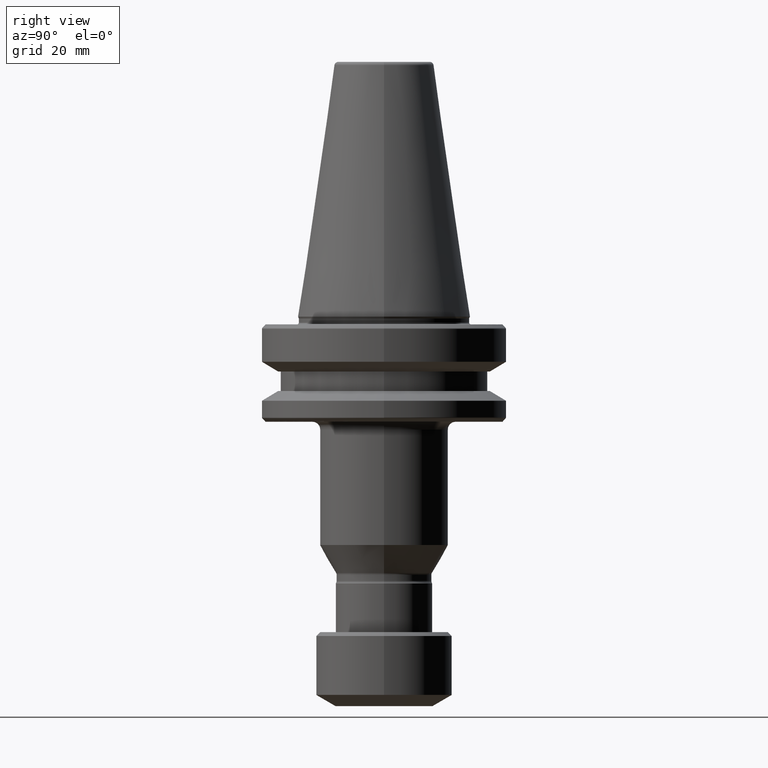
[diagram: clean part render]
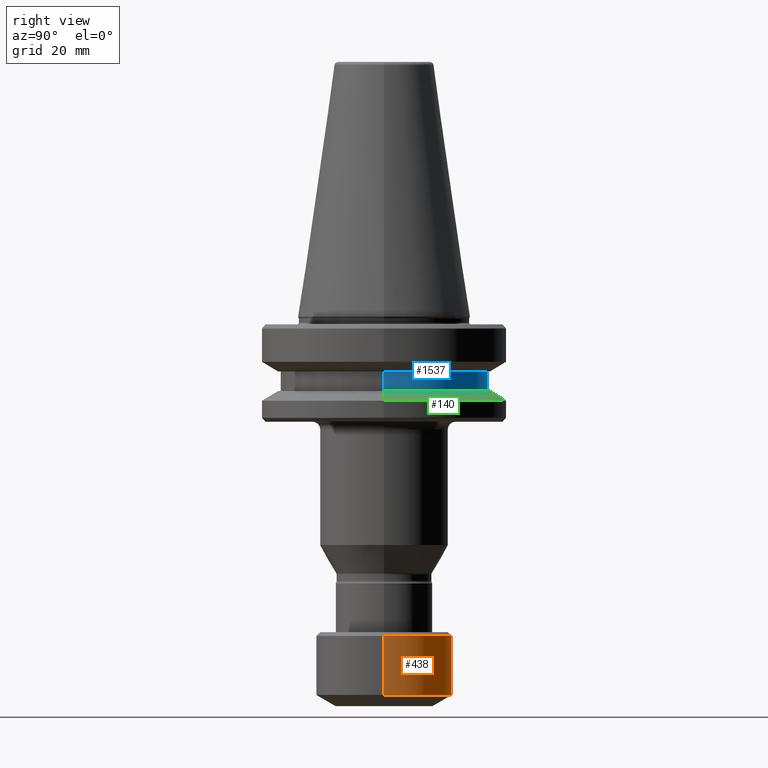
[diagram: same view with three faces highlighted in distinct colors, each labeled with its STEP entity id]
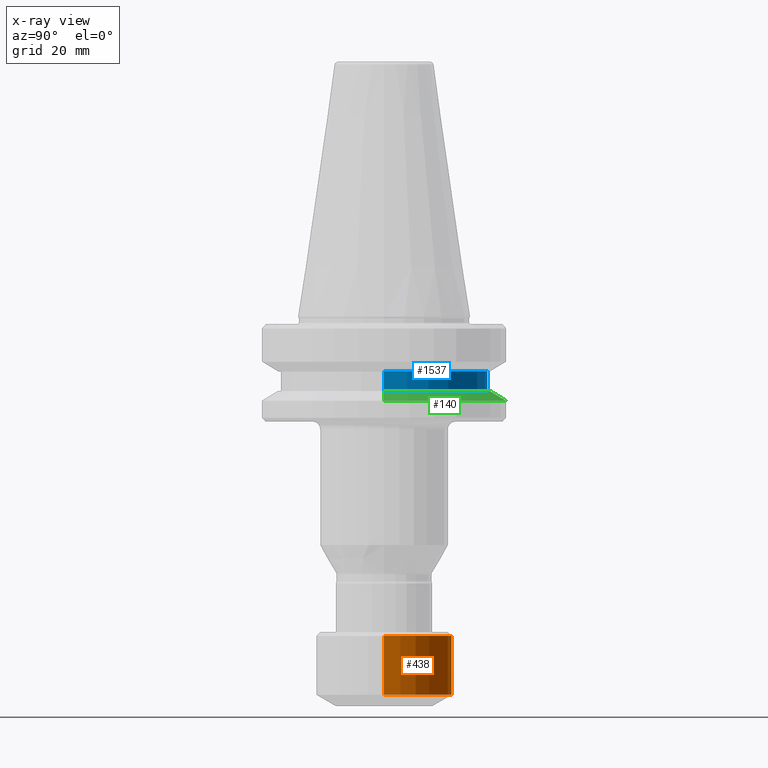
[diagram: x-ray of the same camera — body ghosted, the three highlighted faces saturated]
A machine part, right view with three faces highlighted in distinct colors.
The next image is the same camera in x-ray (body ghosted, the three faces saturated) — at least one of them is partly hidden behind the body in this view.
Their STEP definitions:

[orange] entity #438 — the highlighted cylindrical surface (partial cylindrical patch) has radius 17.499 mm, axis along (-0, -0, 1).
#116 = AXIS2_PLACEMENT_3D ( 'NONE', #489, #1074, #1387 ) ;
#196 = CARTESIAN_POINT ( 'NONE',  ( 17.49901631902814400, 0.0000000000000000000, -80.99999999999904800 ) ) ;
#211 = EDGE_CURVE ( 'NONE', #1041, #744, #463, .T. ) ;
#252 = ORIENTED_EDGE ( 'NONE', *, *, #211, .F. ) ;
#263 = VECTOR ( 'NONE', #775, 1000.000000000000000 ) ;
#265 = LINE ( 'NONE', #315, #263 ) ;
#315 = CARTESIAN_POINT ( 'NONE',  ( -17.49901631902814400, 2.143011432332511200E-015, -80.99999999999904800 ) ) ;
#317 = EDGE_CURVE ( 'NONE', #1041, #1188, #445, .T. ) ;
#321 = AXIS2_PLACEMENT_3D ( 'NONE', #1394, #1328, #840 ) ;
#339 = EDGE_CURVE ( 'NONE', #744, #624, #435, .T. ) ;
#366 = CYLINDRICAL_SURFACE ( 'NONE', #1374, 17.49901631902814400 ) ;
#381 = FACE_OUTER_BOUND ( 'NONE', #723, .T. ) ;
#435 = CIRCLE ( 'NONE', #321, 17.49901631902814400 ) ;
#438 = ADVANCED_FACE ( 'NONE', ( #381 ), #366, .T. ) ;
#440 = CARTESIAN_POINT ( 'NONE',  ( -17.49901631902814400, 2.143011432332511200E-015, -97.11324865405248400 ) ) ;
#445 = CIRCLE ( 'NONE', #116, 17.49901631902814400 ) ;
#457 = VECTOR ( 'NONE', #742, 1000.000000000000000 ) ;
#463 = LINE ( 'NONE', #196, #457 ) ;
#489 = CARTESIAN_POINT ( 'NONE',  ( 0.0000000000000000000, 0.0000000000000000000, -97.11324865405248400 ) ) ;
#543 = DIRECTION ( 'NONE',  ( -0.0000000000000000000, -0.0000000000000000000, 1.000000000000000000 ) ) ;
#592 = CARTESIAN_POINT ( 'NONE',  ( 17.49901631902814400, 2.143011432332511200E-015, -82.00000000000000000 ) ) ;
#600 = ORIENTED_EDGE ( 'NONE', *, *, #317, .T. ) ;
#624 = VERTEX_POINT ( 'NONE', #865 ) ;
#706 = CARTESIAN_POINT ( 'NONE',  ( 0.0000000000000000000, 0.0000000000000000000, -80.99999999999904800 ) ) ;
#723 = EDGE_LOOP ( 'NONE', ( #600, #978, #1413, #252 ) ) ;
#742 = DIRECTION ( 'NONE',  ( -0.0000000000000000000, -0.0000000000000000000, 1.000000000000000000 ) ) ;
#744 = VERTEX_POINT ( 'NONE', #592 ) ;
#775 = DIRECTION ( 'NONE',  ( -0.0000000000000000000, -0.0000000000000000000, 1.000000000000000000 ) ) ;
#794 = CARTESIAN_POINT ( 'NONE',  ( 17.49901631902814400, 0.0000000000000000000, -97.11324865405248400 ) ) ;
#840 = DIRECTION ( 'NONE',  ( 1.000000000000000000, 0.0000000000000000000, 0.0000000000000000000 ) ) ;
#849 = EDGE_CURVE ( 'NONE', #1188, #624, #265, .T. ) ;
#865 = CARTESIAN_POINT ( 'NONE',  ( -17.49901631902814400, 0.0000000000000000000, -82.00000000000000000 ) ) ;
#978 = ORIENTED_EDGE ( 'NONE', *, *, #849, .T. ) ;
#984 = DIRECTION ( 'NONE',  ( 1.000000000000000000, 0.0000000000000000000, 0.0000000000000000000 ) ) ;
#1041 = VERTEX_POINT ( 'NONE', #794 ) ;
#1074 = DIRECTION ( 'NONE',  ( -0.0000000000000000000, -0.0000000000000000000, 1.000000000000000000 ) ) ;
#1188 = VERTEX_POINT ( 'NONE', #440 ) ;
#1328 = DIRECTION ( 'NONE',  ( -0.0000000000000000000, -0.0000000000000000000, 1.000000000000000000 ) ) ;
#1374 = AXIS2_PLACEMENT_3D ( 'NONE', #706, #543, #984 ) ;
#1387 = DIRECTION ( 'NONE',  ( 1.000000000000000000, 0.0000000000000000000, 0.0000000000000000000 ) ) ;
#1394 = CARTESIAN_POINT ( 'NONE',  ( 0.0000000000000000000, 0.0000000000000000000, -82.00000000000000000 ) ) ;
#1413 = ORIENTED_EDGE ( 'NONE', *, *, #339, .F. ) ;

[blue] entity #1537 — the highlighted cylindrical surface (partial cylindrical patch) has radius 26.5 mm, axis along (-0, -0, 1).
#20 = EDGE_CURVE ( 'NONE', #1051, #485, #551, .T. ) ;
#53 = EDGE_CURVE ( 'NONE', #992, #738, #542, .T. ) ;
#95 = AXIS2_PLACEMENT_3D ( 'NONE', #745, #990, #426 ) ;
#201 = CIRCLE ( 'NONE', #810, 26.50000000000000000 ) ;
#426 = DIRECTION ( 'NONE',  ( 1.000000000000000000, 0.0000000000000000000, 0.0000000000000000000 ) ) ;
#484 = CARTESIAN_POINT ( 'NONE',  ( 0.0000000000000000000, 0.0000000000000000000, -19.10000000000000500 ) ) ;
#485 = VERTEX_POINT ( 'NONE', #972 ) ;
#522 = VECTOR ( 'NONE', #1568, 1000.000000000000000 ) ;
#542 = LINE ( 'NONE', #1159, #522 ) ;
#546 = VECTOR ( 'NONE', #1580, 1000.000000000000000 ) ;
#551 = LINE ( 'NONE', #1457, #546 ) ;
#643 = DIRECTION ( 'NONE',  ( 1.000000000000000000, 0.0000000000000000000, 0.0000000000000000000 ) ) ;
#687 = ORIENTED_EDGE ( 'NONE', *, *, #1032, .T. ) ;
#736 = ORIENTED_EDGE ( 'NONE', *, *, #53, .T. ) ;
#738 = VERTEX_POINT ( 'NONE', #753 ) ;
#745 = CARTESIAN_POINT ( 'NONE',  ( 0.0000000000000000000, 0.0000000000000000000, 69.75694866325665100 ) ) ;
#750 = ORIENTED_EDGE ( 'NONE', *, *, #1454, .F. ) ;
#753 = CARTESIAN_POINT ( 'NONE',  ( -26.50000000000000000, 3.245314017740485800E-015, -14.10000000000000100 ) ) ;
#798 = EDGE_LOOP ( 'NONE', ( #687, #736, #750, #927 ) ) ;
#810 = AXIS2_PLACEMENT_3D ( 'NONE', #484, #1274, #643 ) ;
#845 = CARTESIAN_POINT ( 'NONE',  ( 0.0000000000000000000, 0.0000000000000000000, -14.10000000000000100 ) ) ;
#927 = ORIENTED_EDGE ( 'NONE', *, *, #20, .F. ) ;
#972 = CARTESIAN_POINT ( 'NONE',  ( 26.50000000000000000, 0.0000000000000000000, -14.10000000000000100 ) ) ;
#981 = DIRECTION ( 'NONE',  ( 1.000000000000000000, 0.0000000000000000000, 0.0000000000000000000 ) ) ;
#990 = DIRECTION ( 'NONE',  ( -0.0000000000000000000, -0.0000000000000000000, 1.000000000000000000 ) ) ;
#992 = VERTEX_POINT ( 'NONE', #1552 ) ;
#1032 = EDGE_CURVE ( 'NONE', #1051, #992, #201, .T. ) ;
#1051 = VERTEX_POINT ( 'NONE', #1135 ) ;
#1135 = CARTESIAN_POINT ( 'NONE',  ( 26.50000000000000000, 0.0000000000000000000, -19.10000000000000500 ) ) ;
#1159 = CARTESIAN_POINT ( 'NONE',  ( -26.50000000000000000, 3.245314017740485800E-015, 69.75694866325665100 ) ) ;
#1169 = AXIS2_PLACEMENT_3D ( 'NONE', #845, #1606, #981 ) ;
#1222 = CIRCLE ( 'NONE', #1169, 26.50000000000000000 ) ;
#1274 = DIRECTION ( 'NONE',  ( -0.0000000000000000000, -0.0000000000000000000, 1.000000000000000000 ) ) ;
#1287 = CYLINDRICAL_SURFACE ( 'NONE', #95, 26.50000000000000000 ) ;
#1395 = FACE_OUTER_BOUND ( 'NONE', #798, .T. ) ;
#1454 = EDGE_CURVE ( 'NONE', #485, #738, #1222, .T. ) ;
#1457 = CARTESIAN_POINT ( 'NONE',  ( 26.50000000000000000, 0.0000000000000000000, 69.75694866325665100 ) ) ;
#1537 = ADVANCED_FACE ( 'NONE', ( #1395 ), #1287, .T. ) ;
#1552 = CARTESIAN_POINT ( 'NONE',  ( -26.50000000000000000, 3.245314017740485800E-015, -19.10000000000000500 ) ) ;
#1568 = DIRECTION ( 'NONE',  ( -0.0000000000000000000, -0.0000000000000000000, 1.000000000000000000 ) ) ;
#1580 = DIRECTION ( 'NONE',  ( -0.0000000000000000000, -0.0000000000000000000, 1.000000000000000000 ) ) ;
#1606 = DIRECTION ( 'NONE',  ( -0.0000000000000000000, -0.0000000000000000000, 1.000000000000000000 ) ) ;

[green] entity #140 — the highlighted conical surface has half-angle 60 deg.
#11 = ORIENTED_EDGE ( 'NONE', *, *, #718, .T. ) ;
#31 = AXIS2_PLACEMENT_3D ( 'NONE', #1576, #1275, #1536 ) ;
#42 = ORIENTED_EDGE ( 'NONE', *, *, #1100, .F. ) ;
#43 = EDGE_CURVE ( 'NONE', #287, #1447, #536, .T. ) ;
#63 = LINE ( 'NONE', #1428, #75 ) ;
#75 = VECTOR ( 'NONE', #1417, 1000.000000000000000 ) ;
#77 = ORIENTED_EDGE ( 'NONE', *, *, #1313, .T. ) ;
#140 = ADVANCED_FACE ( 'NONE', ( #492 ), #479, .T. ) ;
#159 = VECTOR ( 'NONE', #1279, 1000.000000000000000 ) ;
#166 = LINE ( 'NONE', #1573, #159 ) ;
#167 = CARTESIAN_POINT ( 'NONE',  ( 31.50000000000000000, 0.0000000000000000000, -21.60014200631675500 ) ) ;
#287 = VERTEX_POINT ( 'NONE', #1402 ) ;
#331 = CIRCLE ( 'NONE', #1534, 31.50000000000000000 ) ;
#410 = VERTEX_POINT ( 'NONE', #167 ) ;
#436 = DIRECTION ( 'NONE',  ( -0.0000000000000000000, -0.0000000000000000000, 1.000000000000000000 ) ) ;
#479 = CONICAL_SURFACE ( 'NONE', #831, 27.16962701892216700, 1.047197551196601200 ) ;
#492 = FACE_OUTER_BOUND ( 'NONE', #727, .T. ) ;
#514 = CARTESIAN_POINT ( 'NONE',  ( -27.16962701892216700, 0.0000000000000000000, -19.10000000000000500 ) ) ;
#536 = CIRCLE ( 'NONE', #31, 27.16962701892216700 ) ;
#615 = VERTEX_POINT ( 'NONE', #993 ) ;
#708 = CARTESIAN_POINT ( 'NONE',  ( 0.0000000000000000000, 0.0000000000000000000, -19.10000000000000500 ) ) ;
#718 = EDGE_CURVE ( 'NONE', #410, #615, #331, .T. ) ;
#727 = EDGE_LOOP ( 'NONE', ( #1583, #77, #11, #42 ) ) ;
#831 = AXIS2_PLACEMENT_3D ( 'NONE', #708, #1357, #1452 ) ;
#993 = CARTESIAN_POINT ( 'NONE',  ( -31.50000000000000000, 3.857637417314162700E-015, -21.60014200631675500 ) ) ;
#1100 = EDGE_CURVE ( 'NONE', #1447, #615, #166, .T. ) ;
#1245 = CARTESIAN_POINT ( 'NONE',  ( 0.0000000000000000000, 0.0000000000000000000, -21.60014200631675500 ) ) ;
#1275 = DIRECTION ( 'NONE',  ( -0.0000000000000000000, -0.0000000000000000000, 1.000000000000000000 ) ) ;
#1279 = DIRECTION ( 'NONE',  ( -0.8660254037844403700, 0.0000000000000000000, -0.4999999999999970000 ) ) ;
#1313 = EDGE_CURVE ( 'NONE', #287, #410, #63, .T. ) ;
#1350 = DIRECTION ( 'NONE',  ( 1.000000000000000000, 0.0000000000000000000, 0.0000000000000000000 ) ) ;
#1357 = DIRECTION ( 'NONE',  ( 0.0000000000000000000, 0.0000000000000000000, -1.000000000000000000 ) ) ;
#1402 = CARTESIAN_POINT ( 'NONE',  ( 27.16962701892216700, 3.592478546794605500E-015, -19.10000000000000500 ) ) ;
#1417 = DIRECTION ( 'NONE',  ( 0.8660254037844403700, 1.060575238724909000E-016, -0.4999999999999970000 ) ) ;
#1428 = CARTESIAN_POINT ( 'NONE',  ( 27.16962701892216700, 3.327319676275047600E-015, -19.10000000000000500 ) ) ;
#1447 = VERTEX_POINT ( 'NONE', #514 ) ;
#1452 = DIRECTION ( 'NONE',  ( -1.000000000000000000, 0.0000000000000000000, 0.0000000000000000000 ) ) ;
#1534 = AXIS2_PLACEMENT_3D ( 'NONE', #1245, #436, #1350 ) ;
#1536 = DIRECTION ( 'NONE',  ( 1.000000000000000000, 0.0000000000000000000, 0.0000000000000000000 ) ) ;
#1573 = CARTESIAN_POINT ( 'NONE',  ( -27.16962701892216700, 0.0000000000000000000, -19.10000000000000500 ) ) ;
#1576 = CARTESIAN_POINT ( 'NONE',  ( 0.0000000000000000000, 0.0000000000000000000, -19.10000000000000500 ) ) ;
#1583 = ORIENTED_EDGE ( 'NONE', *, *, #43, .F. ) ;